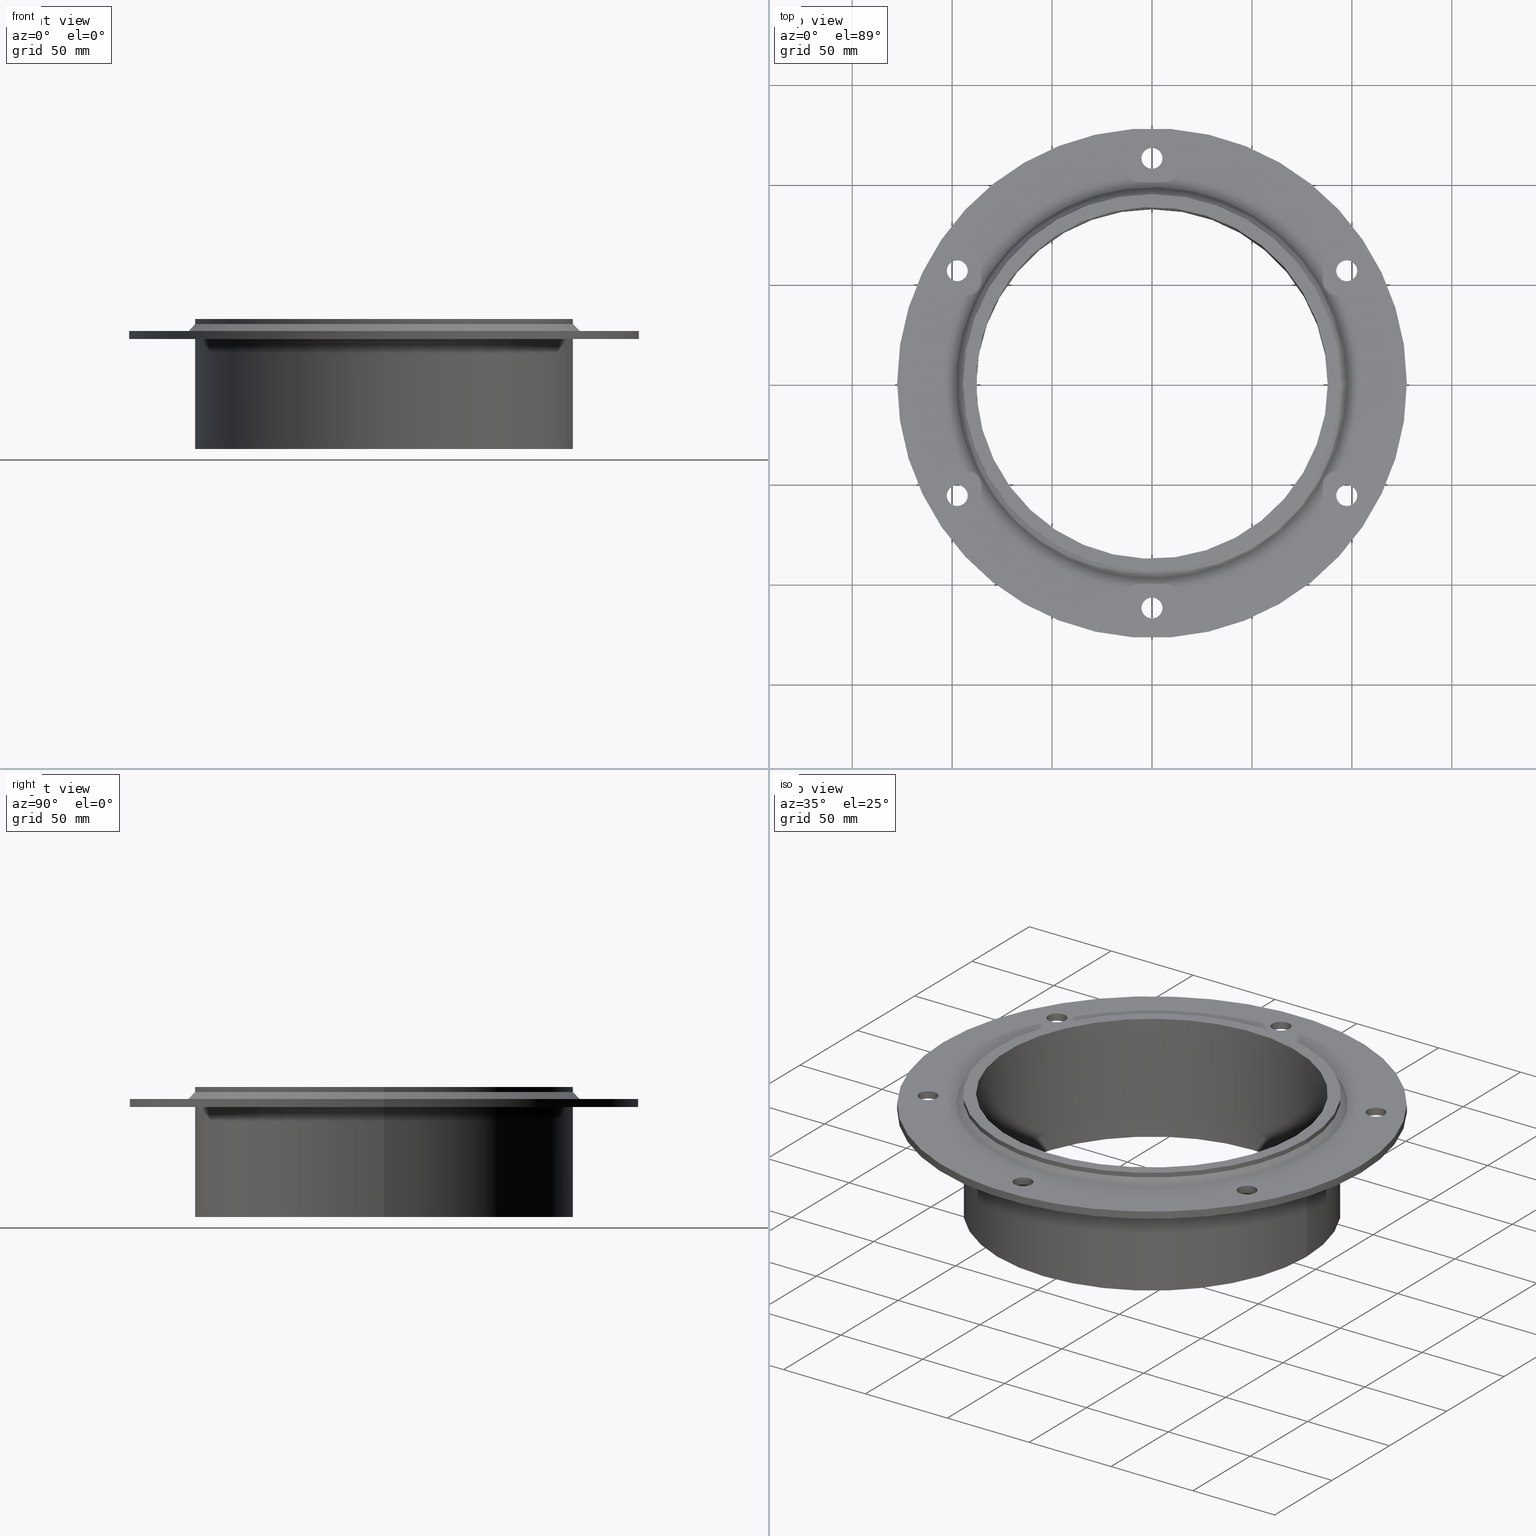
[diagram: canonical four-view strip — front | top / right | iso, engineering-drawing reading convention]
A machine part, canonical four-view strip (front | top / right | iso — engineering-drawing reading convention). The complete STEP part file that produces these views, byte-faithful:
ISO-10303-21;
HEADER;
/****************************************************************
 * Generated by software with PDElib inside                    *
 * PDElib Version v51a, created Wed 11/30/2011                  *
 * ITI Transcendata (http://www.transcendata.com/)              *
 ****************************************************************/
FILE_DESCRIPTION((''),'2;1');
FILE_NAME('C:\\Users\\se-mareng\\Desktop\\RTD\\SLF_\\step\\SLFRS175.stp','2017-02-08T07:36:58',('se-mareng'),(''),'Autodesk Inventor 2013','Autodesk Inventor 2013','');
FILE_SCHEMA(('AUTOMOTIVE_DESIGN { 1 0 10303 214 1 1 1 1 }'));
ENDSEC;
DATA;
#5=APPLICATION_CONTEXT('automotive design');
#6=APPLICATION_PROTOCOL_DEFINITION('International Standard','automotive_design',2001,#5);
#7=PRODUCT_CONTEXT('',#5,'mechanical');
#8=PRODUCT('SLFRS175_old','SLFRS175_old',$,(#7));
#9=PRODUCT_RELATED_PRODUCT_CATEGORY('part',$,(#8));
#10=PRODUCT_DEFINITION_FORMATION('',$,#8);
#11=PRODUCT_DEFINITION_CONTEXT('part definition',#5,'design');
#12=PRODUCT_DEFINITION('',$,#10,#11);
#18=(NAMED_UNIT(*)PLANE_ANGLE_UNIT()SI_UNIT($,.RADIAN.));
#19=DIMENSIONAL_EXPONENTS(0.0,0.0,0.0,0.0,0.0,0.0,0.0);
#20=PLANE_ANGLE_MEASURE_WITH_UNIT(PLANE_ANGLE_MEASURE(0.0174532925),#18);
#24=(CONVERSION_BASED_UNIT('DEGREE',#20)NAMED_UNIT(#19)PLANE_ANGLE_UNIT());
#28=(NAMED_UNIT(*)SI_UNIT($,.STERADIAN.)SOLID_ANGLE_UNIT());
#32=(LENGTH_UNIT()NAMED_UNIT(*)SI_UNIT(.MILLI.,.METRE.));
#34=UNCERTAINTY_MEASURE_WITH_UNIT(LENGTH_MEASURE(0.01),#32,'DISTANCE_ACCURACY_VALUE','');
#36=(GEOMETRIC_REPRESENTATION_CONTEXT(3)GLOBAL_UNCERTAINTY_ASSIGNED_CONTEXT((#34))GLOBAL_UNIT_ASSIGNED_CONTEXT((#24,#28,#32))REPRESENTATION_CONTEXT('None','None'));
#37=AXIS2_PLACEMENT_3D('',#38,#39,#40);
#38=CARTESIAN_POINT('',(0.0,0.0,0.0));
#39=DIRECTION('',(0.0,0.0,1.0));
#40=DIRECTION('',(1.0,0.0,0.0));
#41=SHAPE_REPRESENTATION('',(#37),#36);
#42=PRODUCT_DEFINITION_SHAPE('','',#12);
#43=SHAPE_DEFINITION_REPRESENTATION(#42,#41);
#49=(NAMED_UNIT(*)PLANE_ANGLE_UNIT()SI_UNIT($,.RADIAN.));
#50=DIMENSIONAL_EXPONENTS(0.0,0.0,0.0,0.0,0.0,0.0,0.0);
#51=PLANE_ANGLE_MEASURE_WITH_UNIT(PLANE_ANGLE_MEASURE(0.0174532925),#49);
#55=(CONVERSION_BASED_UNIT('DEGREE',#51)NAMED_UNIT(#50)PLANE_ANGLE_UNIT());
#59=(NAMED_UNIT(*)SI_UNIT($,.STERADIAN.)SOLID_ANGLE_UNIT());
#63=(LENGTH_UNIT()NAMED_UNIT(*)SI_UNIT(.MILLI.,.METRE.));
#65=UNCERTAINTY_MEASURE_WITH_UNIT(LENGTH_MEASURE(0.000001),#63,'DISTANCE_ACCURACY_VALUE','');
#67=(GEOMETRIC_REPRESENTATION_CONTEXT(3)GLOBAL_UNCERTAINTY_ASSIGNED_CONTEXT((#65))GLOBAL_UNIT_ASSIGNED_CONTEXT((#55,#59,#63))REPRESENTATION_CONTEXT('','3D'));
#68=CARTESIAN_POINT('',(-97.42785792574935,-56.249999999999986,-372.435533211505));
#69=DIRECTION('',(0.0,0.0,1.0));
#70=DIRECTION('',(1.0,0.0,0.0));
#71=AXIS2_PLACEMENT_3D('',#68,#69,#70);
#72=CYLINDRICAL_SURFACE('',#71,5.25);
#73=CARTESIAN_POINT('',(-102.67785792574935,-56.249999999999986,-10.0));
#74=VERTEX_POINT('',#73);
#75=CARTESIAN_POINT('',(-97.42785792574935,-56.249999999999986,-10.0));
#76=DIRECTION('',(0.0,0.0,1.0));
#77=DIRECTION('',(1.0,0.0,0.0));
#78=AXIS2_PLACEMENT_3D('',#75,#76,#77);
#79=CIRCLE('',#78,5.25);
#80=EDGE_CURVE('',#74,#74,#79,.T.);
#81=ORIENTED_EDGE('',*,*,#80,.F.);
#82=EDGE_LOOP('',(#81));
#83=FACE_OUTER_BOUND('',#82,.T.);
#84=CARTESIAN_POINT('',(-92.17785792574935,-56.249999999999986,-6.000000000000002));
#85=VERTEX_POINT('',#84);
#86=CARTESIAN_POINT('',(-97.42785792574935,-56.249999999999986,-6.000000000000014));
#87=DIRECTION('',(0.0,0.0,-1.0));
#88=DIRECTION('',(1.0,0.0,0.0));
#89=AXIS2_PLACEMENT_3D('',#86,#87,#88);
#90=CIRCLE('',#89,5.25);
#91=EDGE_CURVE('',#85,#85,#90,.T.);
#92=ORIENTED_EDGE('',*,*,#91,.F.);
#93=EDGE_LOOP('',(#92));
#94=FACE_BOUND('',#93,.T.);
#95=ADVANCED_FACE('',(#83,#94),#72,.F.);
#96=CARTESIAN_POINT('',(97.427857925749294,-56.250000000000036,-372.435533211505));
#97=DIRECTION('',(0.0,0.0,1.0));
#98=DIRECTION('',(1.0,0.0,0.0));
#99=AXIS2_PLACEMENT_3D('',#96,#97,#98);
#100=CYLINDRICAL_SURFACE('',#99,5.25);
#101=CARTESIAN_POINT('',(92.177857925749294,-56.250000000000036,-10.0));
#102=VERTEX_POINT('',#101);
#103=CARTESIAN_POINT('',(97.427857925749294,-56.250000000000036,-10.0));
#104=DIRECTION('',(0.0,0.0,1.0));
#105=DIRECTION('',(1.0,0.0,0.0));
#106=AXIS2_PLACEMENT_3D('',#103,#104,#105);
#107=CIRCLE('',#106,5.25);
#108=EDGE_CURVE('',#102,#102,#107,.T.);
#109=ORIENTED_EDGE('',*,*,#108,.F.);
#110=EDGE_LOOP('',(#109));
#111=FACE_OUTER_BOUND('',#110,.T.);
#112=CARTESIAN_POINT('',(102.67785792574929,-56.250000000000036,-6.000000000000002));
#113=VERTEX_POINT('',#112);
#114=CARTESIAN_POINT('',(97.427857925749294,-56.250000000000036,-6.000000000000014));
#115=DIRECTION('',(0.0,0.0,-1.0));
#116=DIRECTION('',(1.0,0.0,0.0));
#117=AXIS2_PLACEMENT_3D('',#114,#115,#116);
#118=CIRCLE('',#117,5.25);
#119=EDGE_CURVE('',#113,#113,#118,.T.);
#120=ORIENTED_EDGE('',*,*,#119,.F.);
#121=EDGE_LOOP('',(#120));
#122=FACE_BOUND('',#121,.T.);
#123=ADVANCED_FACE('',(#111,#122),#100,.F.);
#124=CARTESIAN_POINT('',(0.0,112.5,-372.435533211505));
#125=DIRECTION('',(0.0,0.0,1.0));
#126=DIRECTION('',(1.0,0.0,0.0));
#127=AXIS2_PLACEMENT_3D('',#124,#125,#126);
#128=CYLINDRICAL_SURFACE('',#127,5.25);
#129=CARTESIAN_POINT('',(-5.25,112.5,-10.0));
#130=VERTEX_POINT('',#129);
#131=CARTESIAN_POINT('',(0.0,112.5,-10.0));
#132=DIRECTION('',(0.0,0.0,1.0));
#133=DIRECTION('',(1.0,0.0,0.0));
#134=AXIS2_PLACEMENT_3D('',#131,#132,#133);
#135=CIRCLE('',#134,5.25);
#136=EDGE_CURVE('',#130,#130,#135,.T.);
#137=ORIENTED_EDGE('',*,*,#136,.F.);
#138=EDGE_LOOP('',(#137));
#139=FACE_OUTER_BOUND('',#138,.T.);
#140=CARTESIAN_POINT('',(5.25,112.5,-6.000000000000002));
#141=VERTEX_POINT('',#140);
#142=CARTESIAN_POINT('',(0.0,112.5,-6.000000000000014));
#143=DIRECTION('',(0.0,0.0,-1.0));
#144=DIRECTION('',(1.0,0.0,0.0));
#145=AXIS2_PLACEMENT_3D('',#142,#143,#144);
#146=CIRCLE('',#145,5.25);
#147=EDGE_CURVE('',#141,#141,#146,.T.);
#148=ORIENTED_EDGE('',*,*,#147,.F.);
#149=EDGE_LOOP('',(#148));
#150=FACE_BOUND('',#149,.T.);
#151=ADVANCED_FACE('',(#139,#150),#128,.F.);
#152=CARTESIAN_POINT('',(97.427857925749379,56.249999999999929,-372.435533211505));
#153=DIRECTION('',(0.0,0.0,1.0));
#154=DIRECTION('',(1.0,0.0,0.0));
#155=AXIS2_PLACEMENT_3D('',#152,#153,#154);
#156=CYLINDRICAL_SURFACE('',#155,5.25);
#157=CARTESIAN_POINT('',(92.177857925749379,56.249999999999929,-10.0));
#158=VERTEX_POINT('',#157);
#159=CARTESIAN_POINT('',(97.427857925749379,56.249999999999929,-10.0));
#160=DIRECTION('',(0.0,0.0,1.0));
#161=DIRECTION('',(1.0,0.0,0.0));
#162=AXIS2_PLACEMENT_3D('',#159,#160,#161);
#163=CIRCLE('',#162,5.25);
#164=EDGE_CURVE('',#158,#158,#163,.T.);
#165=ORIENTED_EDGE('',*,*,#164,.F.);
#166=EDGE_LOOP('',(#165));
#167=FACE_OUTER_BOUND('',#166,.T.);
#168=CARTESIAN_POINT('',(102.67785792574939,56.249999999999929,-6.000000000000002));
#169=VERTEX_POINT('',#168);
#170=CARTESIAN_POINT('',(97.427857925749379,56.249999999999929,-6.000000000000014));
#171=DIRECTION('',(0.0,0.0,-1.0));
#172=DIRECTION('',(1.0,0.0,0.0));
#173=AXIS2_PLACEMENT_3D('',#170,#171,#172);
#174=CIRCLE('',#173,5.25);
#175=EDGE_CURVE('',#169,#169,#174,.T.);
#176=ORIENTED_EDGE('',*,*,#175,.F.);
#177=EDGE_LOOP('',(#176));
#178=FACE_BOUND('',#177,.T.);
#179=ADVANCED_FACE('',(#167,#178),#156,.F.);
#180=CARTESIAN_POINT('',(-8.881784E-015,-112.5,-372.435533211505));
#181=DIRECTION('',(0.0,0.0,1.0));
#182=DIRECTION('',(1.0,0.0,0.0));
#183=AXIS2_PLACEMENT_3D('',#180,#181,#182);
#184=CYLINDRICAL_SURFACE('',#183,5.25);
#185=CARTESIAN_POINT('',(-5.250000000000009,-112.5,-10.0));
#186=VERTEX_POINT('',#185);
#187=CARTESIAN_POINT('',(-8.881784E-015,-112.5,-10.0));
#188=DIRECTION('',(0.0,0.0,1.0));
#189=DIRECTION('',(1.0,0.0,0.0));
#190=AXIS2_PLACEMENT_3D('',#187,#188,#189);
#191=CIRCLE('',#190,5.25);
#192=EDGE_CURVE('',#186,#186,#191,.T.);
#193=ORIENTED_EDGE('',*,*,#192,.F.);
#194=EDGE_LOOP('',(#193));
#195=FACE_OUTER_BOUND('',#194,.T.);
#196=CARTESIAN_POINT('',(5.249999999999991,-112.5,-6.000000000000002));
#197=VERTEX_POINT('',#196);
#198=CARTESIAN_POINT('',(-8.881784E-015,-112.5,-6.000000000000014));
#199=DIRECTION('',(0.0,0.0,-1.0));
#200=DIRECTION('',(1.0,0.0,0.0));
#201=AXIS2_PLACEMENT_3D('',#198,#199,#200);
#202=CIRCLE('',#201,5.25);
#203=EDGE_CURVE('',#197,#197,#202,.T.);
#204=ORIENTED_EDGE('',*,*,#203,.F.);
#205=EDGE_LOOP('',(#204));
#206=FACE_BOUND('',#205,.T.);
#207=ADVANCED_FACE('',(#195,#206),#184,.F.);
#208=CARTESIAN_POINT('',(-97.42785792574935,56.250000000000028,-372.435533211505));
#209=DIRECTION('',(0.0,0.0,1.0));
#210=DIRECTION('',(1.0,0.0,0.0));
#211=AXIS2_PLACEMENT_3D('',#208,#209,#210);
#212=CYLINDRICAL_SURFACE('',#211,5.25);
#213=CARTESIAN_POINT('',(-102.67785792574935,56.250000000000028,-10.0));
#214=VERTEX_POINT('',#213);
#215=CARTESIAN_POINT('',(-97.42785792574935,56.250000000000028,-10.0));
#216=DIRECTION('',(0.0,0.0,1.0));
#217=DIRECTION('',(1.0,0.0,0.0));
#218=AXIS2_PLACEMENT_3D('',#215,#216,#217);
#219=CIRCLE('',#218,5.25);
#220=EDGE_CURVE('',#214,#214,#219,.T.);
#221=ORIENTED_EDGE('',*,*,#220,.F.);
#222=EDGE_LOOP('',(#221));
#223=FACE_OUTER_BOUND('',#222,.T.);
#224=CARTESIAN_POINT('',(-92.17785792574935,56.250000000000028,-6.000000000000002));
#225=VERTEX_POINT('',#224);
#226=CARTESIAN_POINT('',(-97.42785792574935,56.250000000000028,-6.000000000000014));
#227=DIRECTION('',(0.0,0.0,-1.0));
#228=DIRECTION('',(1.0,0.0,0.0));
#229=AXIS2_PLACEMENT_3D('',#226,#227,#228);
#230=CIRCLE('',#229,5.25);
#231=EDGE_CURVE('',#225,#225,#230,.T.);
#232=ORIENTED_EDGE('',*,*,#231,.F.);
#233=EDGE_LOOP('',(#232));
#234=FACE_BOUND('',#233,.T.);
#235=ADVANCED_FACE('',(#223,#234),#212,.F.);
#236=CARTESIAN_POINT('',(0.0,0.0,-4.250000000000002));
#237=DIRECTION('',(0.0,0.0,-1.0));
#238=DIRECTION('',(-1.0,0.0,0.0));
#239=AXIS2_PLACEMENT_3D('',#236,#237,#238);
#240=CONICAL_SURFACE('',#239,96.25,44.999999999999979);
#241=CARTESIAN_POINT('',(98.0,1.200154E-014,-6.000000000000002));
#242=VERTEX_POINT('',#241);
#243=CARTESIAN_POINT('',(0.0,0.0,-6.000000000000002));
#244=DIRECTION('',(0.0,0.0,1.0));
#245=DIRECTION('',(-1.0,0.0,0.0));
#246=AXIS2_PLACEMENT_3D('',#243,#244,#245);
#247=CIRCLE('',#246,98.0);
#248=EDGE_CURVE('',#242,#242,#247,.T.);
#249=ORIENTED_EDGE('',*,*,#248,.T.);
#250=EDGE_LOOP('',(#249));
#251=FACE_OUTER_BOUND('',#250,.T.);
#252=CARTESIAN_POINT('',(94.500000000000014,-1.157291E-014,-2.500000000000002));
#253=VERTEX_POINT('',#252);
#254=CARTESIAN_POINT('',(0.0,0.0,-2.500000000000002));
#255=DIRECTION('',(0.0,0.0,-1.0));
#256=DIRECTION('',(-1.0,0.0,0.0));
#257=AXIS2_PLACEMENT_3D('',#254,#255,#256);
#258=CIRCLE('',#257,94.500000000000014);
#259=EDGE_CURVE('',#253,#253,#258,.T.);
#260=ORIENTED_EDGE('',*,*,#259,.T.);
#261=EDGE_LOOP('',(#260));
#262=FACE_BOUND('',#261,.T.);
#263=ADVANCED_FACE('',(#251,#262),#240,.T.);
#264=CARTESIAN_POINT('',(-1.301187E-015,0.0,-6.000000000000002));
#265=DIRECTION('',(0.0,0.0,1.0));
#266=DIRECTION('',(1.0,0.0,0.0));
#267=AXIS2_PLACEMENT_3D('',#264,#265,#266);
#268=PLANE('',#267);
#269=CARTESIAN_POINT('',(127.5,1.561425E-014,-6.000000000000002));
#270=VERTEX_POINT('',#269);
#271=CARTESIAN_POINT('',(0.0,0.0,-6.000000000000002));
#272=DIRECTION('',(0.0,0.0,1.0));
#273=DIRECTION('',(-1.0,0.0,0.0));
#274=AXIS2_PLACEMENT_3D('',#271,#272,#273);
#275=CIRCLE('',#274,127.5);
#276=EDGE_CURVE('',#270,#270,#275,.T.);
#277=ORIENTED_EDGE('',*,*,#276,.T.);
#278=EDGE_LOOP('',(#277));
#279=FACE_OUTER_BOUND('',#278,.T.);
#280=ORIENTED_EDGE('',*,*,#91,.T.);
#281=EDGE_LOOP('',(#280));
#282=FACE_BOUND('',#281,.T.);
#283=ORIENTED_EDGE('',*,*,#119,.T.);
#284=EDGE_LOOP('',(#283));
#285=FACE_BOUND('',#284,.T.);
#286=ORIENTED_EDGE('',*,*,#147,.T.);
#287=EDGE_LOOP('',(#286));
#288=FACE_BOUND('',#287,.T.);
#289=ORIENTED_EDGE('',*,*,#175,.T.);
#290=EDGE_LOOP('',(#289));
#291=FACE_BOUND('',#290,.T.);
#292=ORIENTED_EDGE('',*,*,#203,.T.);
#293=EDGE_LOOP('',(#292));
#294=FACE_BOUND('',#293,.T.);
#295=ORIENTED_EDGE('',*,*,#231,.T.);
#296=EDGE_LOOP('',(#295));
#297=FACE_BOUND('',#296,.T.);
#298=ORIENTED_EDGE('',*,*,#248,.F.);
#299=EDGE_LOOP('',(#298));
#300=FACE_BOUND('',#299,.T.);
#301=ADVANCED_FACE('',(#279,#282,#285,#288,#291,#294,#297,#300),#268,.T.);
#302=CARTESIAN_POINT('',(0.0,0.0,0.0));
#303=DIRECTION('',(0.0,0.0,-1.0));
#304=DIRECTION('',(-1.0,0.0,0.0));
#305=AXIS2_PLACEMENT_3D('',#302,#303,#304);
#306=CYLINDRICAL_SURFACE('',#305,94.500000000000014);
#307=CARTESIAN_POINT('',(94.500000000000014,1.157291E-014,0.0));
#308=VERTEX_POINT('',#307);
#309=CARTESIAN_POINT('',(0.0,0.0,0.0));
#310=DIRECTION('',(0.0,0.0,-1.0));
#311=DIRECTION('',(-1.0,0.0,0.0));
#312=AXIS2_PLACEMENT_3D('',#309,#310,#311);
#313=CIRCLE('',#312,94.500000000000014);
#314=EDGE_CURVE('',#308,#308,#313,.T.);
#315=ORIENTED_EDGE('',*,*,#314,.T.);
#316=EDGE_LOOP('',(#315));
#317=FACE_OUTER_BOUND('',#316,.T.);
#318=ORIENTED_EDGE('',*,*,#259,.F.);
#319=EDGE_LOOP('',(#318));
#320=FACE_BOUND('',#319,.T.);
#321=ADVANCED_FACE('',(#317,#320),#306,.T.);
#322=CARTESIAN_POINT('',(-1.301187E-015,0.0,-10.0));
#323=DIRECTION('',(0.0,0.0,1.0));
#324=DIRECTION('',(1.0,0.0,0.0));
#325=AXIS2_PLACEMENT_3D('',#322,#323,#324);
#326=PLANE('',#325);
#327=CARTESIAN_POINT('',(127.5,1.561425E-014,-10.0));
#328=VERTEX_POINT('',#327);
#329=CARTESIAN_POINT('',(0.0,0.0,-10.0));
#330=DIRECTION('',(0.0,0.0,-1.0));
#331=DIRECTION('',(-1.0,0.0,0.0));
#332=AXIS2_PLACEMENT_3D('',#329,#330,#331);
#333=CIRCLE('',#332,127.5);
#334=EDGE_CURVE('',#328,#328,#333,.T.);
#335=ORIENTED_EDGE('',*,*,#334,.T.);
#336=EDGE_LOOP('',(#335));
#337=FACE_OUTER_BOUND('',#336,.T.);
#338=ORIENTED_EDGE('',*,*,#80,.T.);
#339=EDGE_LOOP('',(#338));
#340=FACE_BOUND('',#339,.T.);
#341=ORIENTED_EDGE('',*,*,#108,.T.);
#342=EDGE_LOOP('',(#341));
#343=FACE_BOUND('',#342,.T.);
#344=ORIENTED_EDGE('',*,*,#136,.T.);
#345=EDGE_LOOP('',(#344));
#346=FACE_BOUND('',#345,.T.);
#347=ORIENTED_EDGE('',*,*,#164,.T.);
#348=EDGE_LOOP('',(#347));
#349=FACE_BOUND('',#348,.T.);
#350=ORIENTED_EDGE('',*,*,#192,.T.);
#351=EDGE_LOOP('',(#350));
#352=FACE_BOUND('',#351,.T.);
#353=ORIENTED_EDGE('',*,*,#220,.T.);
#354=EDGE_LOOP('',(#353));
#355=FACE_BOUND('',#354,.T.);
#356=CARTESIAN_POINT('',(94.500000000000014,1.157291E-014,-10.0));
#357=VERTEX_POINT('',#356);
#358=CARTESIAN_POINT('',(0.0,0.0,-10.0));
#359=DIRECTION('',(0.0,0.0,-1.0));
#360=DIRECTION('',(-1.0,0.0,0.0));
#361=AXIS2_PLACEMENT_3D('',#358,#359,#360);
#362=CIRCLE('',#361,94.500000000000014);
#363=EDGE_CURVE('',#357,#357,#362,.T.);
#364=ORIENTED_EDGE('',*,*,#363,.F.);
#365=EDGE_LOOP('',(#364));
#366=FACE_BOUND('',#365,.T.);
#367=ADVANCED_FACE('',(#337,#340,#343,#346,#349,#352,#355,#366),#326,.F.);
#368=CARTESIAN_POINT('',(0.0,0.0,-8.0));
#369=DIRECTION('',(0.0,0.0,1.0));
#370=DIRECTION('',(-1.0,0.0,0.0));
#371=AXIS2_PLACEMENT_3D('',#368,#369,#370);
#372=CYLINDRICAL_SURFACE('',#371,127.5);
#373=ORIENTED_EDGE('',*,*,#334,.F.);
#374=EDGE_LOOP('',(#373));
#375=FACE_OUTER_BOUND('',#374,.T.);
#376=ORIENTED_EDGE('',*,*,#276,.F.);
#377=EDGE_LOOP('',(#376));
#378=FACE_BOUND('',#377,.T.);
#379=ADVANCED_FACE('',(#375,#378),#372,.T.);
#380=CARTESIAN_POINT('',(0.0,0.0,-275.07635303675238));
#381=DIRECTION('',(0.0,0.0,1.0));
#382=DIRECTION('',(1.0,0.0,0.0));
#383=AXIS2_PLACEMENT_3D('',#380,#381,#382);
#384=CYLINDRICAL_SURFACE('',#383,88.0);
#385=CARTESIAN_POINT('',(-88.0,-1.077689E-014,-65.0));
#386=VERTEX_POINT('',#385);
#387=CARTESIAN_POINT('',(0.0,0.0,-65.0));
#388=DIRECTION('',(0.0,0.0,1.0));
#389=DIRECTION('',(1.0,0.0,0.0));
#390=AXIS2_PLACEMENT_3D('',#387,#388,#389);
#391=CIRCLE('',#390,88.0);
#392=EDGE_CURVE('',#386,#386,#391,.T.);
#393=ORIENTED_EDGE('',*,*,#392,.F.);
#394=EDGE_LOOP('',(#393));
#395=FACE_OUTER_BOUND('',#394,.T.);
#396=CARTESIAN_POINT('',(88.0,0.0,0.0));
#397=VERTEX_POINT('',#396);
#398=CARTESIAN_POINT('',(0.0,0.0,0.0));
#399=DIRECTION('',(0.0,0.0,-1.0));
#400=DIRECTION('',(1.0,0.0,0.0));
#401=AXIS2_PLACEMENT_3D('',#398,#399,#400);
#402=CIRCLE('',#401,88.0);
#403=EDGE_CURVE('',#397,#397,#402,.T.);
#404=ORIENTED_EDGE('',*,*,#403,.F.);
#405=EDGE_LOOP('',(#404));
#406=FACE_BOUND('',#405,.T.);
#407=ADVANCED_FACE('',(#395,#406),#384,.F.);
#408=CARTESIAN_POINT('',(0.0,0.0,0.0));
#409=DIRECTION('',(0.0,0.0,-1.0));
#410=DIRECTION('',(-1.0,0.0,0.0));
#411=AXIS2_PLACEMENT_3D('',#408,#409,#410);
#412=CYLINDRICAL_SURFACE('',#411,94.500000000000014);
#413=ORIENTED_EDGE('',*,*,#363,.T.);
#414=EDGE_LOOP('',(#413));
#415=FACE_OUTER_BOUND('',#414,.T.);
#416=CARTESIAN_POINT('',(94.500000000000014,1.157291E-014,-65.0));
#417=VERTEX_POINT('',#416);
#418=CARTESIAN_POINT('',(0.0,0.0,-65.0));
#419=DIRECTION('',(0.0,0.0,-1.0));
#420=DIRECTION('',(-1.0,0.0,0.0));
#421=AXIS2_PLACEMENT_3D('',#418,#419,#420);
#422=CIRCLE('',#421,94.500000000000014);
#423=EDGE_CURVE('',#417,#417,#422,.T.);
#424=ORIENTED_EDGE('',*,*,#423,.F.);
#425=EDGE_LOOP('',(#424));
#426=FACE_BOUND('',#425,.T.);
#427=ADVANCED_FACE('',(#415,#426),#412,.T.);
#428=CARTESIAN_POINT('',(-3.470733E-015,1.253162E-015,-65.0));
#429=DIRECTION('',(0.0,0.0,1.0));
#430=DIRECTION('',(1.0,0.0,0.0));
#431=AXIS2_PLACEMENT_3D('',#428,#429,#430);
#432=PLANE('',#431);
#433=ORIENTED_EDGE('',*,*,#423,.T.);
#434=EDGE_LOOP('',(#433));
#435=FACE_OUTER_BOUND('',#434,.T.);
#436=ORIENTED_EDGE('',*,*,#392,.T.);
#437=EDGE_LOOP('',(#436));
#438=FACE_BOUND('',#437,.T.);
#439=ADVANCED_FACE('',(#435,#438),#432,.F.);
#440=CARTESIAN_POINT('',(-3.470733E-015,1.253162E-015,0.0));
#441=DIRECTION('',(0.0,0.0,1.0));
#442=DIRECTION('',(1.0,0.0,0.0));
#443=AXIS2_PLACEMENT_3D('',#440,#441,#442);
#444=PLANE('',#443);
#445=ORIENTED_EDGE('',*,*,#314,.F.);
#446=EDGE_LOOP('',(#445));
#447=FACE_OUTER_BOUND('',#446,.T.);
#448=ORIENTED_EDGE('',*,*,#403,.T.);
#449=EDGE_LOOP('',(#448));
#450=FACE_BOUND('',#449,.T.);
#451=ADVANCED_FACE('',(#447,#450),#444,.T.);
#452=CLOSED_SHELL('',(#95,#123,#151,#179,#207,#235,#263,#301,#321,#367,#379,#407,#427,#439,#451));
#453=MANIFOLD_SOLID_BREP('Solid1',#452);
#454=COLOUR_RGB('',0.800000011920929,0.796078443527222,0.701960802078247);
#455=FILL_AREA_STYLE_COLOUR('',#454);
#456=FILL_AREA_STYLE('',(#455));
#457=SURFACE_STYLE_FILL_AREA(#456);
#458=SURFACE_SIDE_STYLE('',(#457));
#459=SURFACE_STYLE_USAGE(.BOTH.,#458);
#460=PRESENTATION_STYLE_ASSIGNMENT((#459));
#461=STYLED_ITEM('',(#460,#469),#453);
#462=MECHANICAL_DESIGN_GEOMETRIC_PRESENTATION_REPRESENTATION('',(#461),#67);
#463=COLOUR_RGB('204,203,179',0.800000011920929,0.796078443527222,0.701960802078247);
#464=FILL_AREA_STYLE_COLOUR('204,203,179',#463);
#465=FILL_AREA_STYLE('204,203,179',(#464));
#466=SURFACE_STYLE_FILL_AREA(#465);
#467=SURFACE_SIDE_STYLE('204,203,179',(#466));
#468=SURFACE_STYLE_USAGE(.BOTH.,#467);
#469=PRESENTATION_STYLE_ASSIGNMENT((#468));
#470=ADVANCED_BREP_SHAPE_REPRESENTATION('ABSR',(#453),#36);
#471=SHAPE_REPRESENTATION_RELATIONSHIP('SRR','None',#470,#41);
ENDSEC;
END-ISO-10303-21;
